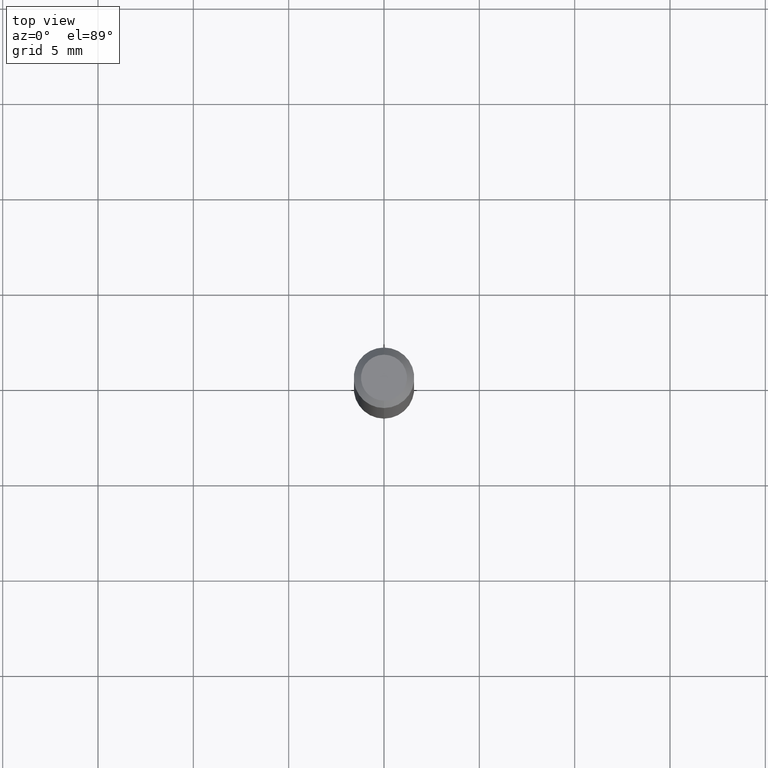
[diagram: clean part render]
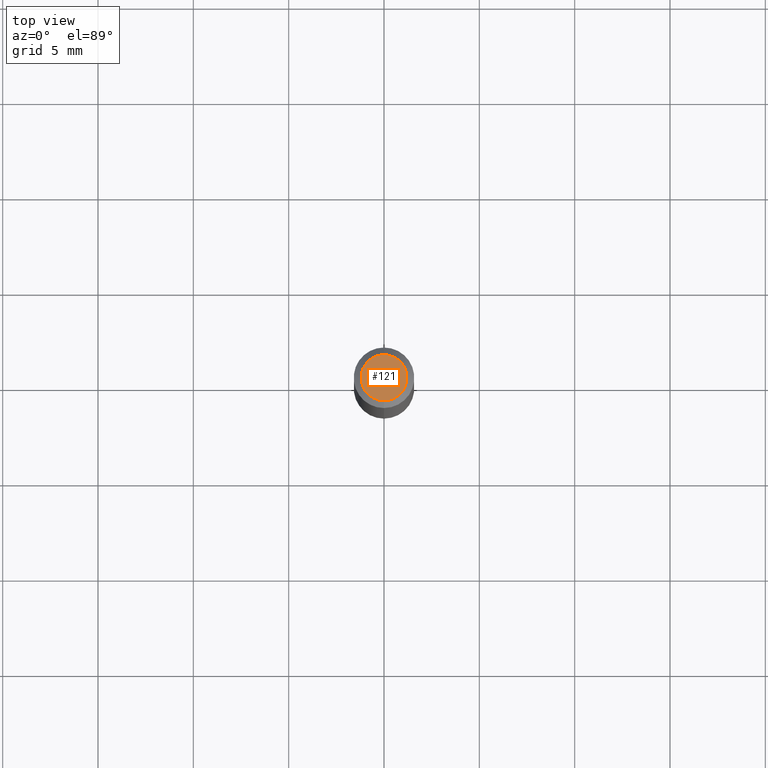
[diagram: same view with one face highlighted and labeled with its STEP entity id]
A machine part, top view. The second image highlights one B-rep face of the part: STEP entity #121.
In plain terms, the highlighted planar face has unit normal (0, -0, -1).
Its self-contained STEP definition (entity closure, byte-faithful):
#111 = CARTESIAN_POINT ( 'NONE',  ( -6.680516123286629518E-45, 9.538978500264815193E-31, 2.731932621678161082E-16 ) ) ;
#121 = ADVANCED_FACE ( 'NONE', ( #181 ), #336, .F. ) ;
#129 = VERTEX_POINT ( 'NONE', #338 ) ;
#139 = DIRECTION ( 'NONE',  ( 2.445344394761444506E-29, -3.491659503082930850E-15, -1.000000000000000000 ) ) ;
#151 = CARTESIAN_POINT ( 'NONE',  ( -3.773273898774340269E-16, -0.04750000000000000749, 4.390470885642552910E-16 ) ) ;
#164 = CARTESIAN_POINT ( 'NONE',  ( -6.680516123286629518E-45, 9.538978500264815193E-31, 2.731932621678161082E-16 ) ) ;
#181 = FACE_OUTER_BOUND ( 'NONE', #289, .T. ) ;
#187 = CARTESIAN_POINT ( 'NONE',  ( 3.316907271900976589E-16, 0.04750000000000000749, -2.925719531253115952E-17 ) ) ;
#233 = EDGE_CURVE ( 'NONE', #250, #129, #507, .T. ) ;
#234 = AXIS2_PLACEMENT_3D ( 'NONE', #111, #432, #508 ) ;
#237 = DIRECTION ( 'NONE',  ( -6.982962677686265133E-15, -1.000000000000000000, 3.491659503082930061E-15 ) ) ;
#250 = VERTEX_POINT ( 'NONE', #151 ) ;
#289 = EDGE_LOOP ( 'NONE', ( #447, #320 ) ) ;
#316 = DIRECTION ( 'NONE',  ( -2.445344394761444786E-29, 3.491659503082930455E-15, 1.000000000000000000 ) ) ;
#320 = ORIENTED_EDGE ( 'NONE', *, *, #233, .T. ) ;
#336 = PLANE ( 'NONE',  #372 ) ;
#338 = CARTESIAN_POINT ( 'NONE',  ( 3.840629472727447874E-16, 0.04750000000000000749, 1.073394357713768884E-16 ) ) ;
#372 = AXIS2_PLACEMENT_3D ( 'NONE', #187, #139, #374 ) ;
#374 = DIRECTION ( 'NONE',  ( 6.982962677686265922E-15, 1.000000000000000000, -3.491659503082930850E-15 ) ) ;
#389 = CIRCLE ( 'NONE', #482, 0.04750000000000000749 ) ;
#432 = DIRECTION ( 'NONE',  ( -2.445344394761444786E-29, 3.491659503082930455E-15, 1.000000000000000000 ) ) ;
#434 = EDGE_CURVE ( 'NONE', #129, #250, #389, .T. ) ;
#447 = ORIENTED_EDGE ( 'NONE', *, *, #434, .T. ) ;
#482 = AXIS2_PLACEMENT_3D ( 'NONE', #164, #316, #237 ) ;
#507 = CIRCLE ( 'NONE', #234, 0.04750000000000000749 ) ;
#508 = DIRECTION ( 'NONE',  ( -6.982962677686265133E-15, -1.000000000000000000, 3.491659503082930061E-15 ) ) ;